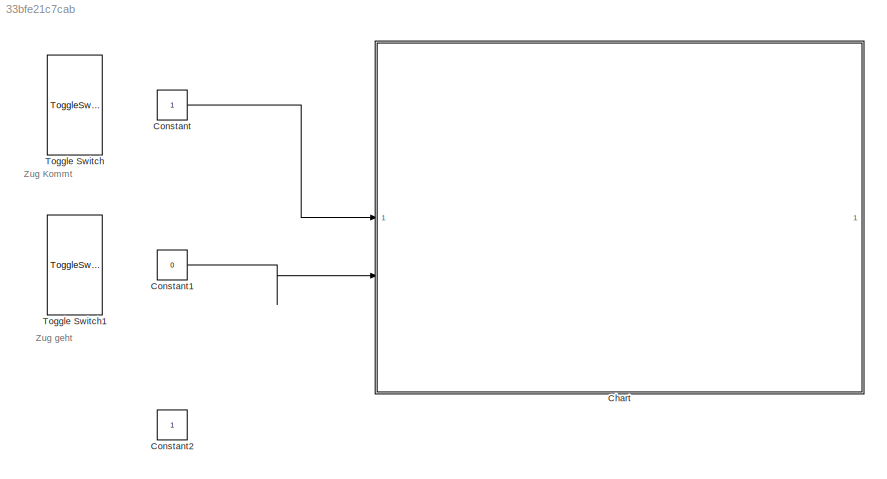
MODEL slx_33bfe21c7cab
KIND model
CONFIG AbsTol = auto
CONFIG EnableMultiTasking = off
CONFIG FixedStep = auto
CONFIG MaxStep = auto
CONFIG MinStep = auto
CONFIG RelTol = 1e-3
CONFIG SampleTimeConstraint = Unconstrained
CONFIG SolverName = VariableStepAuto
CONFIG StartTime = 0.0
CONFIG StopTime = inf
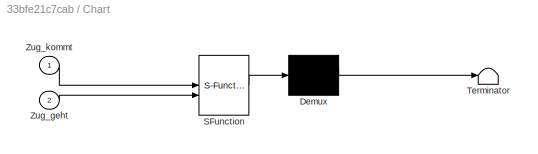
BLOCK [SubSystem] Chart
  ErrorFcn = Stateflow.Translate.translate
  PermitHierarchicalResolution = ExplicitOnly
  SFBlockType = Chart
  TreatAsAtomicUnit = on
BLOCK [Demux] Chart/ Demux 
  Outputs = 1
BLOCK [S-Function] Chart/ SFunction 
  EnableBusSupport = on
  FunctionName = sf_sfun
  PortCounts = [2 1]
  SFcnIsStateOwnerBlock = off
  SFunctionDeploymentMode = off
  Tag = Stateflow S-Function 3
BLOCK [Terminator] Chart/ Terminator 
BLOCK [Inport] Chart/Zug_geht
  Port = 2
BLOCK [Inport] Chart/Zug_kommt
BLOCK [Constant] Constant
BLOCK [Constant] Constant1
  Value = 0
BLOCK [Constant] Constant2
BLOCK [ToggleSwitchBlock] Toggle Switch
BLOCK [ToggleSwitchBlock] Toggle Switch1
ANNOTATION (root): Zug Kommt
ANNOTATION (root): Zug geht
LINE Constant1:1 -> Chart:2
LINE Constant:1 -> Chart:1
CHART Chart states=18 transitions=16
  STATE_LABEL 'Bahn_uebergang\n'
  STATE_LABEL 'Schranke'
  STATE_LABEL 'S2'
  STATE_LABEL 'S2_Offen'
  STATE_LABEL 'delayS1_und_blink\n'
  STATE_LABEL 'S2_Zu'
  STATE_LABEL '[counter < 0 || counter == 0]'
  STATE_LABEL '[counter > 0]'
  STATE_LABEL 'after(20, sec)'
  STATE_LABEL 'S1'
  STATE_LABEL 'S1_Offen'
  STATE_LABEL 'delay_blink'
  STATE_LABEL 'S1_Zu'
  STATE_LABEL '[counter < 0 || counter == 0]'
  STATE_LABEL '[counter > 0]'
  STATE_LABEL 'after(10, sec)'
  STATE_LABEL 'Warnlich'
  STATE_LABEL 'Warnlich_Aus'
  STATE_LABEL 'Warnlich_Blink'
  STATE_LABEL 'Warnlich_rot'
  STATE_LABEL '[counter < 0 || counter == 0]'
  STATE_LABEL '[counter > 0]'
  STATE_LABEL 'after(20, sec)'
  STATE_LABEL 'a\n'
  STATE_LABEL 'zug_kommt\nentry: counter = counter + 1;\n'
  STATE_LABEL '[Zug_kommt]'
  STATE_LABEL 'a1\n'
  STATE_LABEL 'zug_geht\nentry: counter = counter - 1;\n'
  STATE_LABEL '[counter > 0 && Zug_geht ]'
  STATE_LABEL 'Schranke'
  STATE_LABEL 'S2'
  STATE_LABEL 'S2_Offen'
  STATE_LABEL 'delayS1_und_blink\n'
  STATE_LABEL 'S2_Zu'
  STATE_LABEL '[counter < 0 || counter == 0]'
  STATE_LABEL '[counter > 0]'
  STATE_LABEL 'after(20, sec)'
  STATE_LABEL 'S1'
  STATE_LABEL 'S1_Offen'
  STATE_LABEL 'delay_blink'
CHART  states=0 transitions=0
